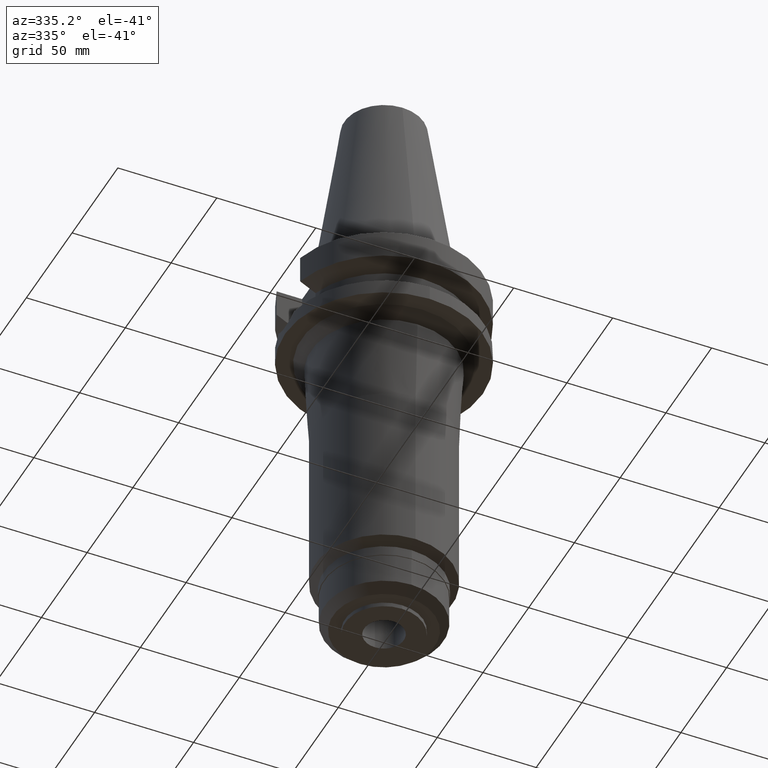
[diagram: clean part render]
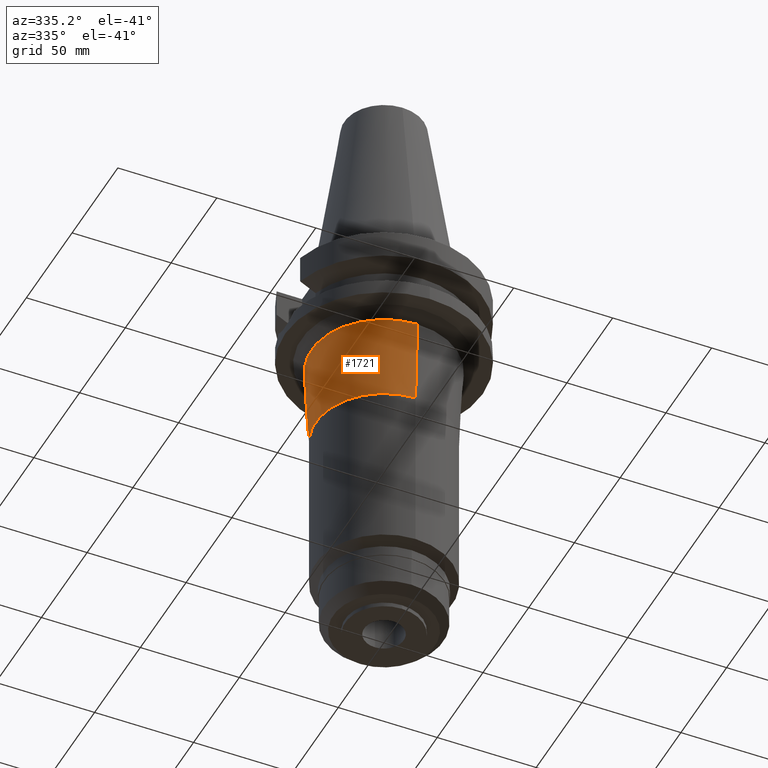
[diagram: same view with one face highlighted and labeled with its STEP entity id]
A machine part, auxiliary view. The second image highlights one B-rep face of the part: STEP entity #1721.
In plain terms, the highlighted conical surface has half-angle 2.964 deg.
Its self-contained STEP definition (entity closure, byte-faithful):
#428=DIRECTION('',(0.E0,5.170848851152E-2,-9.986622212820E-1));
#429=VECTOR('',#428,4.305760154299E1);
#430=CARTESIAN_POINT('',(0.E0,-3.672644349472E1,-4.3E1));
#431=LINE('',#430,#429);
#435=CARTESIAN_POINT('',(0.E0,0.E0,-8.6E1));
#436=DIRECTION('',(0.E0,0.E0,-1.E0));
#437=DIRECTION('',(0.E0,-1.E0,0.E0));
#438=AXIS2_PLACEMENT_3D('',#435,#436,#437);
#443=DIRECTION('',(0.E0,-5.170848851152E-2,-9.986622212820E-1));
#444=VECTOR('',#443,4.305760154299E1);
#445=CARTESIAN_POINT('',(0.E0,3.672644349472E1,-4.3E1));
#446=LINE('',#445,#444);
#480=CARTESIAN_POINT('',(0.E0,0.E0,-4.3E1));
#481=DIRECTION('',(0.E0,0.E0,-1.E0));
#482=DIRECTION('',(0.E0,-1.E0,0.E0));
#483=AXIS2_PLACEMENT_3D('',#480,#481,#482);
#1196=CARTESIAN_POINT('',(0.E0,3.45E1,-8.6E1));
#1197=VERTEX_POINT('',#1196);
#1198=CARTESIAN_POINT('',(0.E0,-3.45E1,-8.6E1));
#1199=VERTEX_POINT('',#1198);
#1200=CARTESIAN_POINT('',(0.E0,3.672644349472E1,-4.3E1));
#1201=VERTEX_POINT('',#1200);
#1202=CARTESIAN_POINT('',(0.E0,-3.672644349472E1,-4.3E1));
#1203=VERTEX_POINT('',#1202);
#1707=CARTESIAN_POINT('',(0.E0,0.E0,-6.45E1));
#1708=DIRECTION('',(0.E0,0.E0,1.E0));
#1709=DIRECTION('',(0.E0,1.E0,0.E0));
#1710=AXIS2_PLACEMENT_3D('',#1707,#1708,#1709);
#1711=CONICAL_SURFACE('',#1710,3.561322174736E1,2.964E0);
#1713=ORIENTED_EDGE('',*,*,#1712,.F.);
#1715=ORIENTED_EDGE('',*,*,#1714,.F.);
#1717=ORIENTED_EDGE('',*,*,#1716,.T.);
#1718=ORIENTED_EDGE('',*,*,#1700,.T.);
#1719=EDGE_LOOP('',(#1713,#1715,#1717,#1718));
#1720=FACE_OUTER_BOUND('',#1719,.F.);
#439=CIRCLE('',#438,3.45E1);
#484=CIRCLE('',#483,3.672644349472E1);
#1700=EDGE_CURVE('',#1199,#1197,#439,.T.);
#1712=EDGE_CURVE('',#1201,#1197,#446,.T.);
#1714=EDGE_CURVE('',#1203,#1201,#484,.T.);
#1716=EDGE_CURVE('',#1203,#1199,#431,.T.);
#1721=ADVANCED_FACE('',(#1720),#1711,.T.);